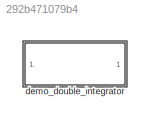
MODEL slx_292b471079b4
KIND library
CONFIG AbsTol = auto
CONFIG EnableMultiTasking = off
CONFIG FixedStep = auto
CONFIG MaxStep = auto
CONFIG MinStep = auto
CONFIG RelTol = 1e-3
CONFIG SampleTimeConstraint = Unconstrained
CONFIG SolverName = VariableStepAuto
CONFIG StartTime = 0.0
CONFIG StopTime = 10.0
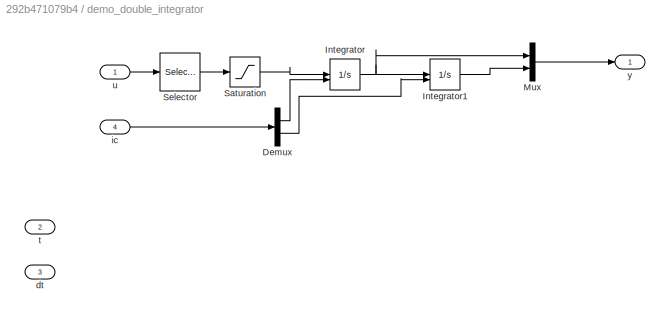
BLOCK [SubSystem] demo_double_integrator
BLOCK [Demux] demo_double_integrator/Demux
  Outputs = 2
BLOCK [Integrator] demo_double_integrator/Integrator
  InitialConditionSource = external
BLOCK [Integrator] demo_double_integrator/Integrator1
  InitialConditionSource = external
BLOCK [Mux] demo_double_integrator/Mux
  DisplayOption = bar
  Inputs = 2
BLOCK [Saturate] demo_double_integrator/Saturation
  LowerLimit = -1
  UpperLimit = 1
BLOCK [Selector] demo_double_integrator/Selector
  IndexOptions = Index vector (dialog)
  Indices = [1]
  InputPortWidth = 3
  OutputSizes = 1
BLOCK [Inport] demo_double_integrator/dt
  Port = 3
BLOCK [Inport] demo_double_integrator/ic
  Port = 4
BLOCK [Inport] demo_double_integrator/t
  Port = 2
BLOCK [Inport] demo_double_integrator/u
  PortDimensions = 3
BLOCK [Outport] demo_double_integrator/y
  PortDimensions = 2
LINE demo_double_integrator/Demux:1 -> demo_double_integrator/Integrator:2
LINE demo_double_integrator/Demux:2 -> demo_double_integrator/Integrator1:2
LINE demo_double_integrator/Integrator1:1 -> demo_double_integrator/Mux:2
NET demo_double_integrator/Integrator:1 -> demo_double_integrator/Integrator1:1, demo_double_integrator/Mux:1
LINE demo_double_integrator/Mux:1 -> demo_double_integrator/y:1
LINE demo_double_integrator/Saturation:1 -> demo_double_integrator/Integrator:1
LINE demo_double_integrator/Selector:1 -> demo_double_integrator/Saturation:1
LINE demo_double_integrator/ic:1 -> demo_double_integrator/Demux:1
LINE demo_double_integrator/u:1 -> demo_double_integrator/Selector:1
note: NET lines group one-source signal fan-out (src -> all destinations, sorted); 1:1 wires keep LINE
